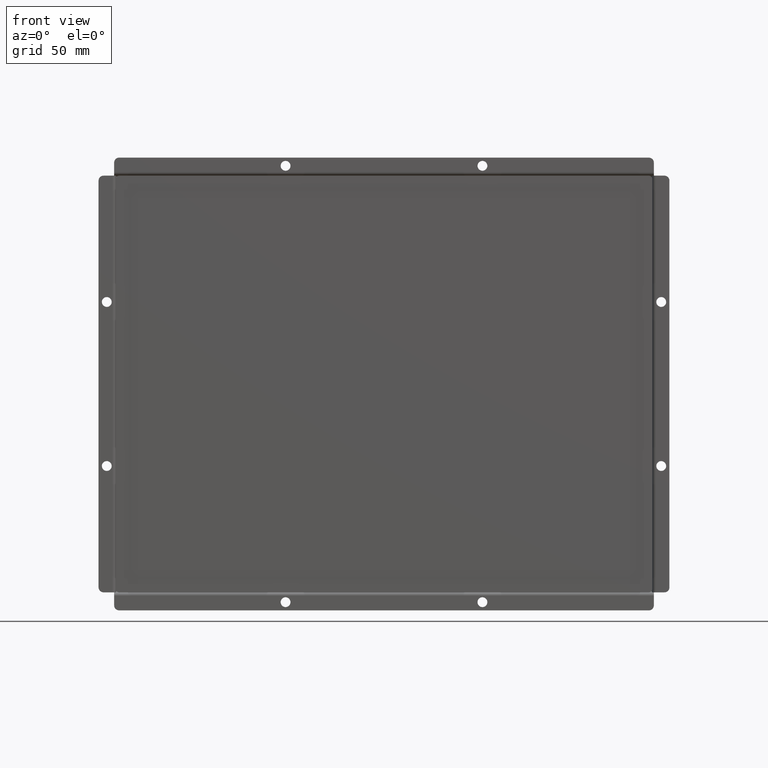
[diagram: clean part render]
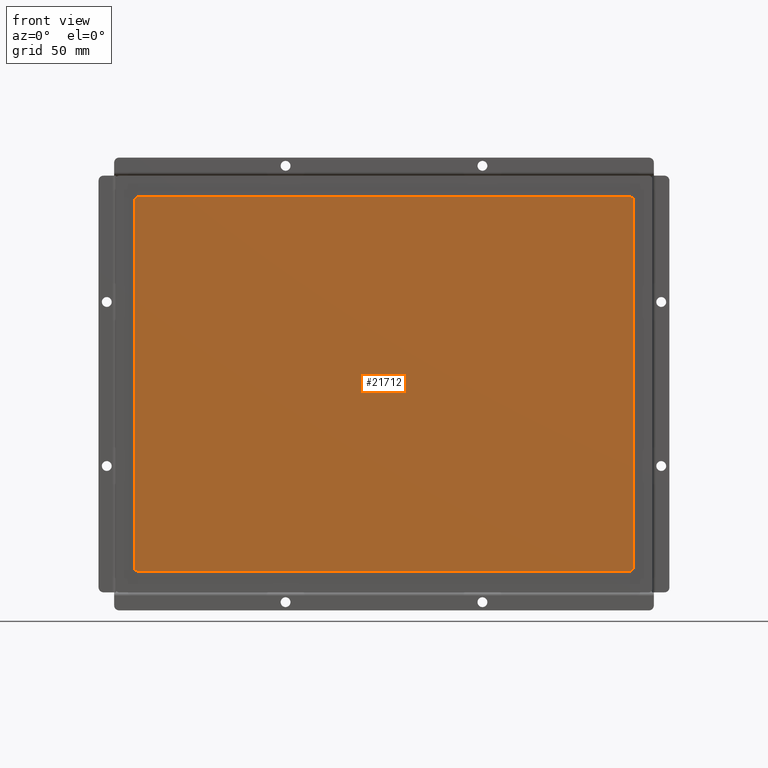
[diagram: same view with one face highlighted and labeled with its STEP entity id]
A machine part, front view. The second image highlights one B-rep face of the part: STEP entity #21712.
In plain terms, the highlighted planar face has unit normal (0, -1, -0).
Its self-contained STEP definition (entity closure, byte-faithful):
#1798=PLANE('',#23437);
#2522=FACE_OUTER_BOUND('',#3775,.T.);
#3775=EDGE_LOOP('',(#15857,#15858,#15859,#15860,#15861,#15862,#15863,#15864));
#5372=LINE('',#32556,#7224);
#5373=LINE('',#32560,#7225);
#5374=LINE('',#32564,#7226);
#5375=LINE('',#32567,#7227);
#7224=VECTOR('',#26096,10.);
#7225=VECTOR('',#26099,10.);
#7226=VECTOR('',#26102,10.);
#7227=VECTOR('',#26105,10.);
#8928=CIRCLE('',#23438,1.99999999999999);
#8929=CIRCLE('',#23439,1.99999999999999);
#8930=CIRCLE('',#23440,2.00000000000003);
#8931=CIRCLE('',#23441,1.99999999999999);
#10006=VERTEX_POINT('',#32552);
#10007=VERTEX_POINT('',#32553);
#10008=VERTEX_POINT('',#32555);
#10009=VERTEX_POINT('',#32557);
#10010=VERTEX_POINT('',#32559);
#10011=VERTEX_POINT('',#32561);
#10012=VERTEX_POINT('',#32563);
#10013=VERTEX_POINT('',#32565);
#12276=EDGE_CURVE('',#10006,#10007,#8928,.T.);
#12277=EDGE_CURVE('',#10007,#10008,#5372,.T.);
#12278=EDGE_CURVE('',#10008,#10009,#8929,.T.);
#12279=EDGE_CURVE('',#10009,#10010,#5373,.T.);
#12280=EDGE_CURVE('',#10010,#10011,#8930,.T.);
#12281=EDGE_CURVE('',#10011,#10012,#5374,.T.);
#12282=EDGE_CURVE('',#10012,#10013,#8931,.T.);
#12283=EDGE_CURVE('',#10013,#10006,#5375,.T.);
#15857=ORIENTED_EDGE('',*,*,#12276,.T.);
#15858=ORIENTED_EDGE('',*,*,#12277,.T.);
#15859=ORIENTED_EDGE('',*,*,#12278,.T.);
#15860=ORIENTED_EDGE('',*,*,#12279,.T.);
#15861=ORIENTED_EDGE('',*,*,#12280,.T.);
#15862=ORIENTED_EDGE('',*,*,#12281,.T.);
#15863=ORIENTED_EDGE('',*,*,#12282,.T.);
#15864=ORIENTED_EDGE('',*,*,#12283,.T.);
#21712=ADVANCED_FACE('',(#2522),#1798,.T.);
#23437=AXIS2_PLACEMENT_3D('',#32551,#26092,#26093);
#23438=AXIS2_PLACEMENT_3D('',#32554,#26094,#26095);
#23439=AXIS2_PLACEMENT_3D('',#32558,#26097,#26098);
#23440=AXIS2_PLACEMENT_3D('',#32562,#26100,#26101);
#23441=AXIS2_PLACEMENT_3D('',#32566,#26103,#26104);
#26092=DIRECTION('center_axis',(0.,0.,1.));
#26093=DIRECTION('ref_axis',(1.,0.,0.));
#26094=DIRECTION('center_axis',(0.,0.,1.));
#26095=DIRECTION('ref_axis',(-1.,-8.88178419700128E-15,0.));
#26096=DIRECTION('',(-1.,-1.18384327850733E-16,0.));
#26097=DIRECTION('center_axis',(0.,0.,1.));
#26098=DIRECTION('ref_axis',(0.,-1.,0.));
#26099=DIRECTION('',(-1.58532515787617E-16,-1.,0.));
#26100=DIRECTION('center_axis',(0.,0.,1.));
#26101=DIRECTION('ref_axis',(1.,0.,0.));
#26102=DIRECTION('',(1.,0.,0.));
#26103=DIRECTION('center_axis',(0.,0.,1.));
#26104=DIRECTION('ref_axis',(0.,1.,0.));
#26105=DIRECTION('',(-1.58532515787617E-16,1.,0.));
#32551=CARTESIAN_POINT('Origin',(0.,-1.77635683940025E-14,12.3));
#32552=CARTESIAN_POINT('',(152.05,112.05,12.3));
#32553=CARTESIAN_POINT('',(150.05,114.05,12.3));
#32554=CARTESIAN_POINT('Origin',(150.05,112.05,12.3));
#32555=CARTESIAN_POINT('',(-150.05,114.05,12.3));
#32556=CARTESIAN_POINT('',(75.025,114.05,12.3));
#32557=CARTESIAN_POINT('',(-152.05,112.05,12.3));
#32558=CARTESIAN_POINT('Origin',(-150.05,112.05,12.3));
#32559=CARTESIAN_POINT('',(-152.05,-112.05,12.3));
#32560=CARTESIAN_POINT('',(-152.05,56.025,12.3));
#32561=CARTESIAN_POINT('',(-150.05,-114.05,12.3));
#32562=CARTESIAN_POINT('Origin',(-150.05,-112.05,12.3));
#32563=CARTESIAN_POINT('',(150.05,-114.05,12.3));
#32564=CARTESIAN_POINT('',(-75.025,-114.05,12.3));
#32565=CARTESIAN_POINT('',(152.05,-112.05,12.3));
#32566=CARTESIAN_POINT('Origin',(150.05,-112.05,12.3));
#32567=CARTESIAN_POINT('',(152.05,-56.025,12.3));